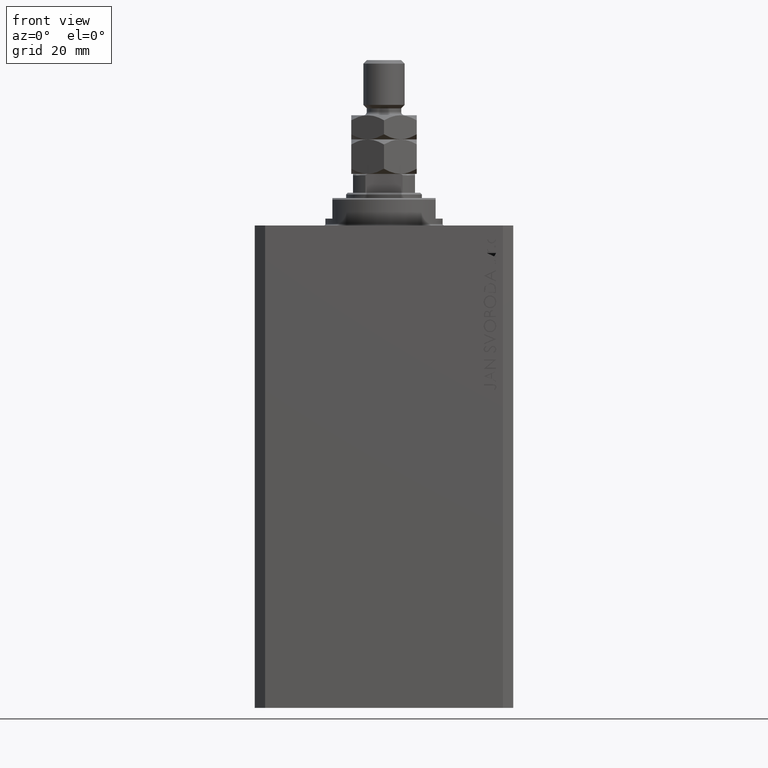
[diagram: clean part render]
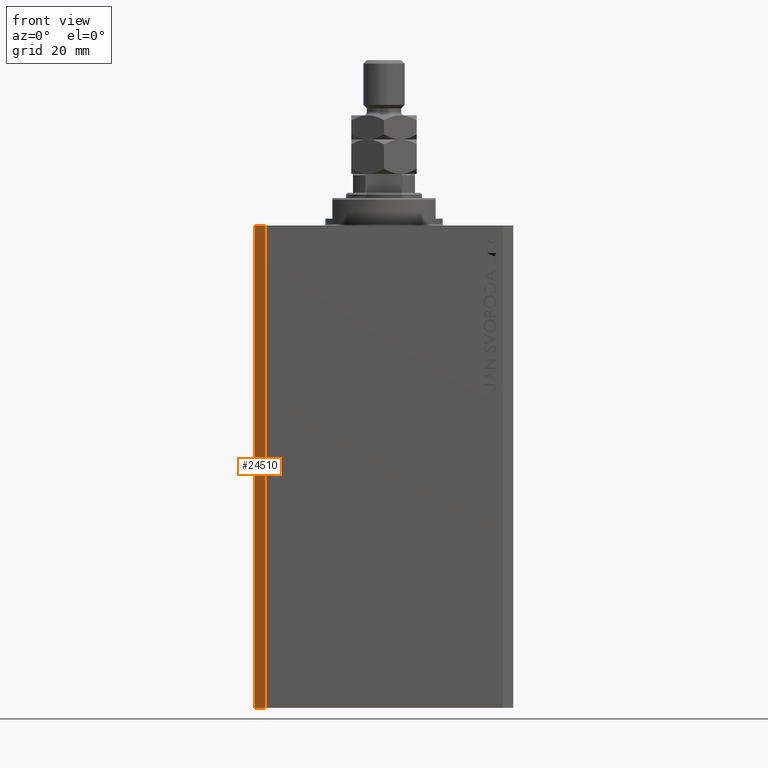
[diagram: same view with one face highlighted and labeled with its STEP entity id]
A machine part, front view. The second image highlights one B-rep face of the part: STEP entity #24510.
In plain terms, the highlighted planar face has unit normal (-0.7071, -0.7071, 0).
Its self-contained STEP definition (entity closure, byte-faithful):
#116 = EDGE_CURVE ( 'NONE', #21302, #21829, #18751, .T. ) ;
#541 = CARTESIAN_POINT ( 'NONE',  ( -34.49999999999998579, -27.49999999999999645, -140.0000000000000000 ) ) ;
#1193 = ORIENTED_EDGE ( 'NONE', *, *, #46828, .T. ) ;
#2753 = CARTESIAN_POINT ( 'NONE',  ( -37.49999999999999289, -24.50000000000000000, -140.0000000000000000 ) ) ;
#3480 = PLANE ( 'NONE',  #35209 ) ;
#4917 = EDGE_CURVE ( 'NONE', #27400, #13299, #30405, .T. ) ;
#7256 = CARTESIAN_POINT ( 'NONE',  ( -37.49999999999999289, -24.50000000000000000, 0.000000000000000000 ) ) ;
#7944 = EDGE_CURVE ( 'NONE', #21829, #13299, #29530, .T. ) ;
#10762 = CARTESIAN_POINT ( 'NONE',  ( -37.49999999999999289, -24.50000000000000000, 0.000000000000000000 ) ) ;
#11527 = CARTESIAN_POINT ( 'NONE',  ( -34.49999999999998579, -27.49999999999999645, -140.0000000000000000 ) ) ;
#13299 = VERTEX_POINT ( 'NONE', #47910 ) ;
#14729 = CARTESIAN_POINT ( 'NONE',  ( -37.49999999999999289, -24.50000000000000000, -140.0000000000000000 ) ) ;
#14813 = VECTOR ( 'NONE', #45450, 1000.000000000000000 ) ;
#16417 = ORIENTED_EDGE ( 'NONE', *, *, #116, .F. ) ;
#18751 = LINE ( 'NONE', #29361, #43930 ) ;
#18912 = DIRECTION ( 'NONE',  ( 0.7071067811865483499, -0.7071067811865466846, 0.000000000000000000 ) ) ;
#19653 = VECTOR ( 'NONE', #25822, 1000.000000000000000 ) ;
#21302 = VERTEX_POINT ( 'NONE', #14729 ) ;
#21829 = VERTEX_POINT ( 'NONE', #7256 ) ;
#21957 = DIRECTION ( 'NONE',  ( 0.000000000000000000, 0.000000000000000000, 1.000000000000000000 ) ) ;
#22238 = FACE_OUTER_BOUND ( 'NONE', #22307, .T. ) ;
#22307 = EDGE_LOOP ( 'NONE', ( #23142, #16417, #1193, #42383 ) ) ;
#23142 = ORIENTED_EDGE ( 'NONE', *, *, #7944, .F. ) ;
#24510 = ADVANCED_FACE ( 'NONE', ( #22238 ), #3480, .T. ) ;
#25200 = VECTOR ( 'NONE', #18912, 1000.000000000000000 ) ;
#25822 = DIRECTION ( 'NONE',  ( 0.7071067811865483499, -0.7071067811865466846, 0.000000000000000000 ) ) ;
#27400 = VERTEX_POINT ( 'NONE', #11527 ) ;
#29361 = CARTESIAN_POINT ( 'NONE',  ( -37.49999999999999289, -24.50000000000000000, -140.0000000000000000 ) ) ;
#29530 = LINE ( 'NONE', #10762, #19653 ) ;
#30405 = LINE ( 'NONE', #541, #14813 ) ;
#33581 = DIRECTION ( 'NONE',  ( -0.7071067811865466846, -0.7071067811865483499, 0.000000000000000000 ) ) ;
#33704 = CARTESIAN_POINT ( 'NONE',  ( -37.49999999999999289, -24.50000000000000000, -140.0000000000000000 ) ) ;
#35209 = AXIS2_PLACEMENT_3D ( 'NONE', #2753, #33581, #43730 ) ;
#42383 = ORIENTED_EDGE ( 'NONE', *, *, #4917, .T. ) ;
#43730 = DIRECTION ( 'NONE',  ( 0.7071067811865483499, -0.7071067811865466846, 0.000000000000000000 ) ) ;
#43930 = VECTOR ( 'NONE', #21957, 1000.000000000000000 ) ;
#45053 = LINE ( 'NONE', #33704, #25200 ) ;
#45450 = DIRECTION ( 'NONE',  ( 0.000000000000000000, 0.000000000000000000, 1.000000000000000000 ) ) ;
#46828 = EDGE_CURVE ( 'NONE', #21302, #27400, #45053, .T. ) ;
#47910 = CARTESIAN_POINT ( 'NONE',  ( -34.49999999999998579, -27.49999999999999645, 0.000000000000000000 ) ) ;